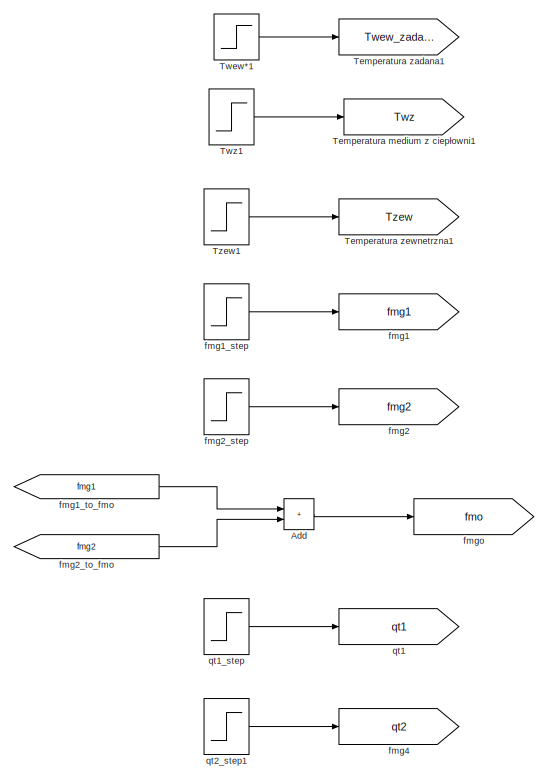
[diagram: root canvas - part 1/5, top left region]
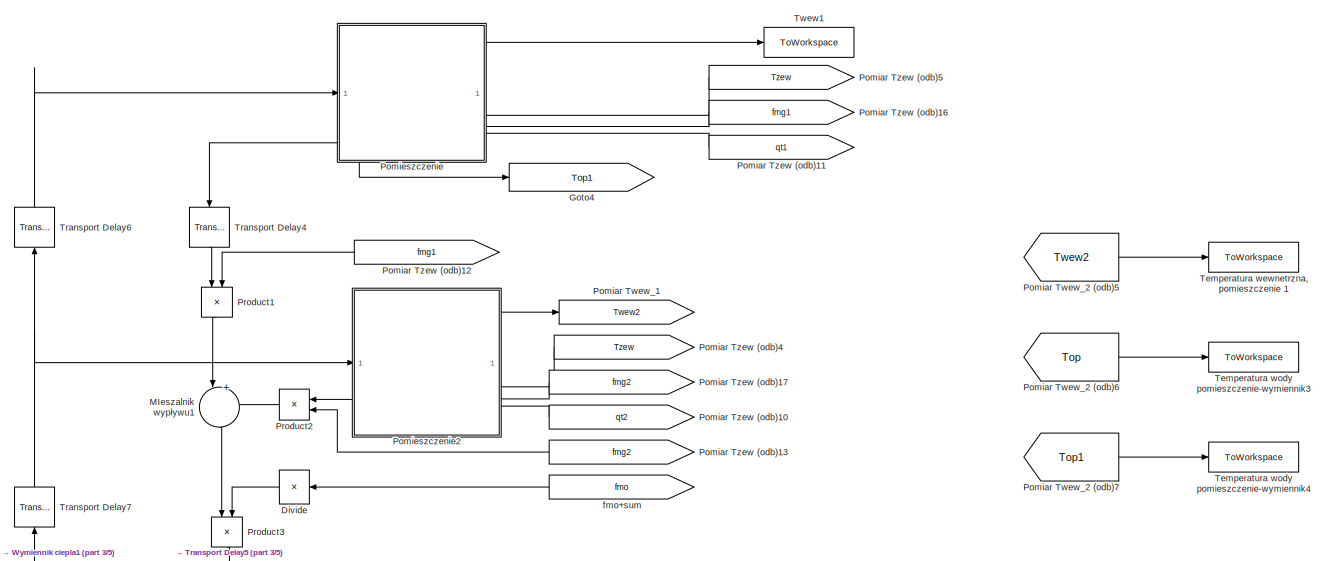
[diagram: root canvas - part 2/5, middle right region]
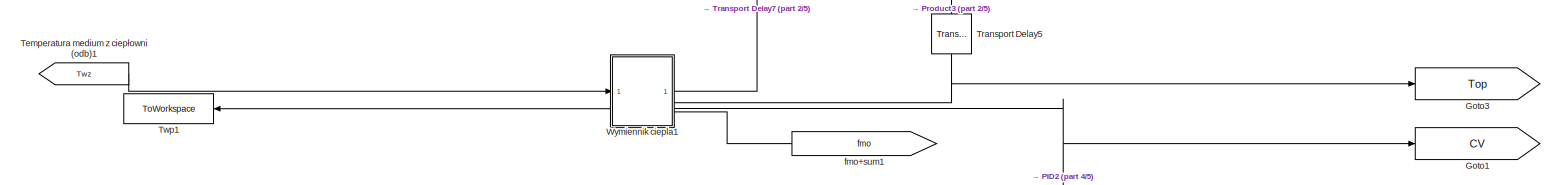
[diagram: root canvas - part 3/5, central region]
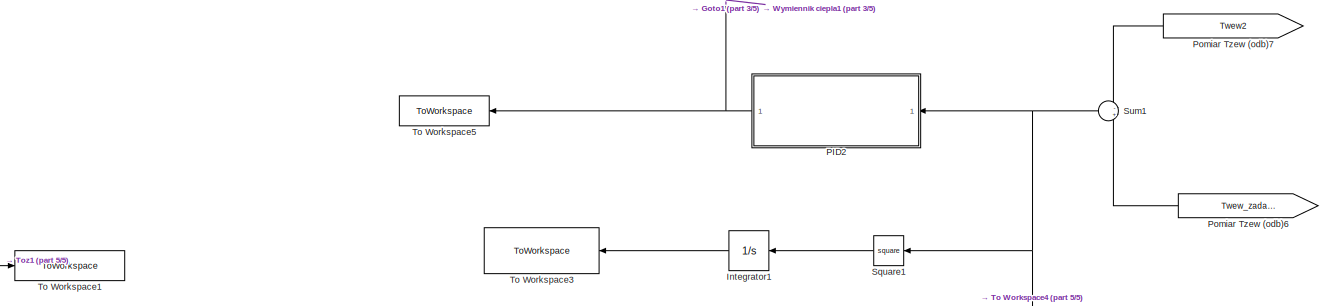
[diagram: root canvas - part 4/5, bottom center region]
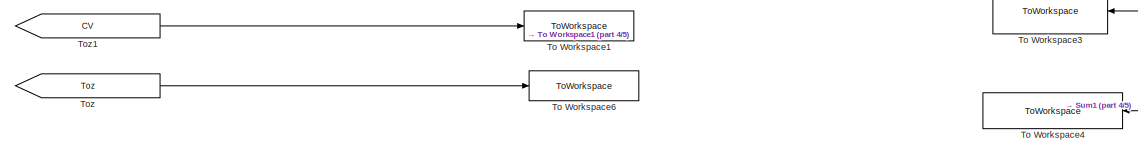
[diagram: root canvas - part 5/5, bottom left region]
MODEL slx_71a029a3e1ad
KIND model
CONFIG AbsTol = auto
CONFIG EnableMultiTasking = off
CONFIG FixedStep = 0.1
CONFIG MaxStep = 10
CONFIG MinStep = auto
CONFIG RelTol = 1e-3
CONFIG SampleTimeConstraint = Unconstrained
CONFIG SolverName = VariableStepAuto
CONFIG StartTime = 0.0
CONFIG StopTime = 10.0
WORKSPACE source: mxarray member
WORKSPACE Var = 0
BLOCK [Sum] Add
  IconShape = rectangular
BLOCK [Product] Divide
  Inputs = /
  NameLocation = top
BLOCK [Goto] Goto1
  GotoTag = CV
BLOCK [Goto] Goto3
  GotoTag = Top
BLOCK [Goto] Goto4
  GotoTag = Top1
BLOCK [Integrator] Integrator1
  NameLocation = top
BLOCK [Sum] MIeszalnik wypływu1
  Inputs = |++
  NameLocation = left
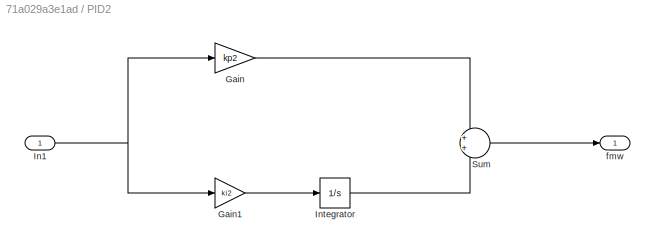
BLOCK [SubSystem] PID2
  NameLocation = top
BLOCK [Gain] PID2/Gain
  Gain = kp2
BLOCK [Gain] PID2/Gain1
  Gain = ki2
BLOCK [Inport] PID2/In1
BLOCK [Integrator] PID2/Integrator
  InitialCondition = fmw_0
BLOCK [Sum] PID2/Sum
BLOCK [Outport] PID2/fmw
BLOCK [Goto] Pomiar Twew_1
  GotoTag = Twew2
  NameLocation = right
BLOCK [From] Pomiar Twew_2 (odb)5
  GotoTag = Twew2
BLOCK [From] Pomiar Twew_2 (odb)6
  GotoTag = Top
BLOCK [From] Pomiar Twew_2 (odb)7
  GotoTag = Top1
BLOCK [From] Pomiar Tzew (odb)10
  GotoTag = qt2
  NameLocation = right
BLOCK [From] Pomiar Tzew (odb)11
  GotoTag = qt1
  NameLocation = right
BLOCK [From] Pomiar Tzew (odb)12
  GotoTag = fmg1
  NameLocation = right
BLOCK [From] Pomiar Tzew (odb)13
  GotoTag = fmg2
  NameLocation = right
BLOCK [From] Pomiar Tzew (odb)16
  GotoTag = fmg1
  NameLocation = right
BLOCK [From] Pomiar Tzew (odb)17
  GotoTag = fmg2
  NameLocation = right
BLOCK [From] Pomiar Tzew (odb)4
  GotoTag = Tzew
  NameLocation = right
BLOCK [From] Pomiar Tzew (odb)5
  GotoTag = Tzew
  NameLocation = right
BLOCK [From] Pomiar Tzew (odb)6
  GotoTag = Twew_zadana
BLOCK [From] Pomiar Tzew (odb)7
  GotoTag = Twew2
BLOCK [SubSystem] Pomieszczenie
  PortSchema = {"entries":[{"content":{"sides":[{"content":{"connectorIds":["In1","Out1"]},"type":"ConnectorPlacement.EquallySpacedRectSide","uuid":"8531bf00-72e2-4413-af12-728660d5b7ed"},{"content":{"connectorIds":["Out2","In2","In3","In4"],"side":"RIGHT"},"type":"ConnectorPlacement.EquallySpacedRectSide","uuid":"61dc3c29-eecf-49ab-a3f8-5b1de1949346"},{"content":{"side":"TOP"},"type":"ConnectorPlacement.Equally...<+247ch>
  ReferencedSubsystem = Pomieszczenie
BLOCK [SubSystem] Pomieszczenie2
  PortSchema = {"entries":[{"content":{"sides":[{"content":{"connectorIds":["In1","Out1"]},"type":"ConnectorPlacement.EquallySpacedRectSide","uuid":"8531bf00-72e2-4413-af12-728660d5b7ed"},{"content":{"connectorIds":["Out2","In2","In3","In4"],"side":"RIGHT"},"type":"ConnectorPlacement.EquallySpacedRectSide","uuid":"61dc3c29-eecf-49ab-a3f8-5b1de1949346"},{"content":{"side":"TOP"},"type":"ConnectorPlacement.Equally...<+247ch>
  ReferencedSubsystem = Pomieszczenie
BLOCK [Product] Product1
  NameLocation = left
BLOCK [Product] Product2
  NameLocation = top
BLOCK [Product] Product3
  NameLocation = left
BLOCK [Math] Square1
  NameLocation = top
  Operator = square
BLOCK [Sum] Sum1
  Inputs = -+
  NameLocation = top
BLOCK [From] Temperatura medium z ciepłowni (odb)1
  GotoTag = Twz
  NameLocation = top
BLOCK [Goto] Temperatura medium z ciepłowni1
  GotoTag = Twz
BLOCK [ToWorkspace] Temperatura wewnetrzna, pomieszczenie 1
  FixptAsFi = on
  MaxDataPoints = inf
  SampleTime = -1
  Save2DSignal = 2-D array (concatenate along first dimension)
  VariableName = Twew1
BLOCK [ToWorkspace] Temperatura wody pomieszczenie-wymiennik3
  FixptAsFi = on
  MaxDataPoints = inf
  SampleTime = -1
  Save2DSignal = 2-D array (concatenate along first dimension)
  VariableName = Top
BLOCK [ToWorkspace] Temperatura wody pomieszczenie-wymiennik4
  FixptAsFi = on
  MaxDataPoints = inf
  SampleTime = -1
  SaveFormat = Timeseries
  VariableName = Top1
BLOCK [Goto] Temperatura zadana1
  GotoTag = Twew_zadana
BLOCK [Goto] Temperatura zewnetrzna1
  GotoTag = Tzew
BLOCK [ToWorkspace] To Workspace1
  FixptAsFi = on
  MaxDataPoints = inf
  SampleTime = -1
  Save2DSignal = 2-D array (concatenate along first dimension)
  VariableName = CV
BLOCK [ToWorkspace] To Workspace3
  FixptAsFi = on
  MaxDataPoints = inf
  NameLocation = top
  SampleTime = -1
  VariableName = wsk_calkowy1
BLOCK [ToWorkspace] To Workspace4
  FixptAsFi = on
  MaxDataPoints = inf
  NameLocation = top
  SampleTime = -1
  VariableName = uchyb1
BLOCK [ToWorkspace] To Workspace5
  FixptAsFi = on
  MaxDataPoints = inf
  NameLocation = top
  SampleTime = -1
  VariableName = fmw1
BLOCK [ToWorkspace] To Workspace6
  FixptAsFi = on
  MaxDataPoints = inf
  SampleTime = -1
  VariableName = Toz
BLOCK [From] Toz
  GotoTag = Toz
  NameLocation = top
BLOCK [From] Toz1
  GotoTag = CV
  NameLocation = top
BLOCK [TransportDelay] Transport Delay4
  DelayTime = t_op_tr
  InitialOutput = T_gp0
  NameLocation = left
BLOCK [TransportDelay] Transport Delay5
  DelayTime = t_op_tr
  InitialOutput = T_gp0
  NameLocation = left
BLOCK [TransportDelay] Transport Delay6
  DelayTime = t_op_tr
  InitialOutput = T_oz0
  NameLocation = right
BLOCK [TransportDelay] Transport Delay7
  DelayTime = t_op_tr
  InitialOutput = T_oz0
  NameLocation = right
BLOCK [Step] Twew*1
  After = T_wew_SP_0 + delta_Twew_SP
  Before = T_wew_SP_0
  SampleTime = 0
  Time = t_wew_SP
BLOCK [ToWorkspace] Twew1
  FixptAsFi = on
  MaxDataPoints = inf
  NameLocation = right
  SampleTime = -1
  Save2DSignal = 2-D array (concatenate along first dimension)
  VariableName = Twew
BLOCK [ToWorkspace] Twp1
  FixptAsFi = on
  MaxDataPoints = inf
  NameLocation = top
  SampleTime = -1
  Save2DSignal = 2-D array (concatenate along first dimension)
  VariableName = Twp1
BLOCK [Step] Twz1
  After = T_wz
  Before = T_wz
  SampleTime = 0
  Time = t_Twz
BLOCK [Step] Tzew1
  After = T_zew0 + delta_Tzew
  Before = T_zew0
  SampleTime = 0
  Time = t_Tzew
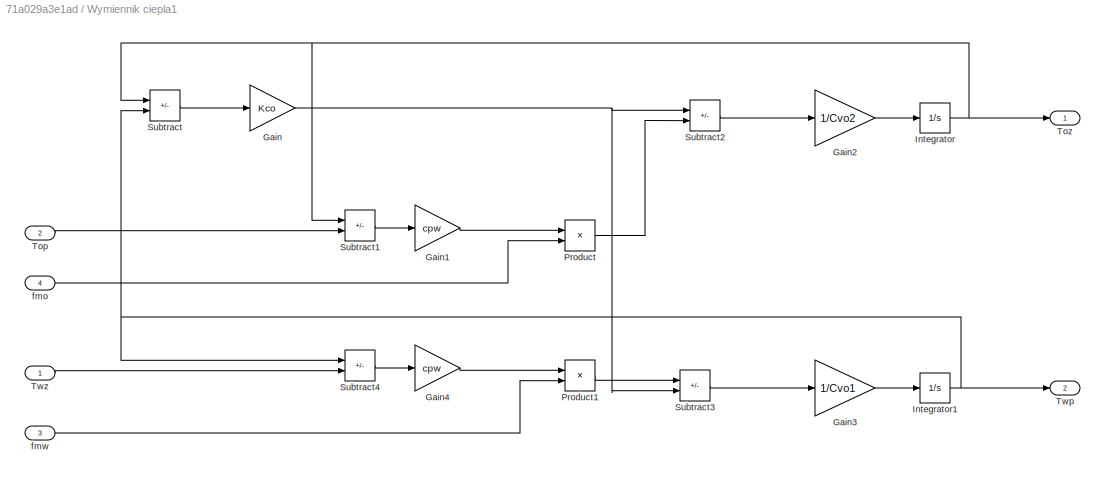
BLOCK [SubSystem] Wymiennik ciepla1
  PortSchema = {"entries":[{"content":{"sides":[{"content":{"connectorIds":["In1","Out2"]},"type":"ConnectorPlacement.EquallySpacedRectSide","uuid":"d2a1b48e-0b7a-4274-8a7b-b9fce30bfded"},{"content":{"connectorIds":["Out1","In2","In3","In4"],"side":"RIGHT"},"type":"ConnectorPlacement.EquallySpacedRectSide","uuid":"703c2424-3a4a-4f57-8096-11f8c1d27324"},{"content":{"side":"TOP"},"type":"ConnectorPlacement.Equally...<+373ch>
BLOCK [Gain] Wymiennik ciepla1/Gain
  Gain = Kco
BLOCK [Gain] Wymiennik ciepla1/Gain1
  Gain = cpw
BLOCK [Gain] Wymiennik ciepla1/Gain2
  Gain = 1/Cvo2
BLOCK [Gain] Wymiennik ciepla1/Gain3
  Gain = 1/Cvo1
BLOCK [Gain] Wymiennik ciepla1/Gain4
  Gain = cpw
BLOCK [Integrator] Wymiennik ciepla1/Integrator
  InitialCondition = T_oz0
BLOCK [Integrator] Wymiennik ciepla1/Integrator1
  InitialCondition = T_wp0
BLOCK [Product] Wymiennik ciepla1/Product
BLOCK [Product] Wymiennik ciepla1/Product1
BLOCK [Sum] Wymiennik ciepla1/Subtract
  IconShape = rectangular
  Inputs = -+
BLOCK [Sum] Wymiennik ciepla1/Subtract1
  IconShape = rectangular
  Inputs = +-
BLOCK [Sum] Wymiennik ciepla1/Subtract2
  IconShape = rectangular
  Inputs = +-
BLOCK [Sum] Wymiennik ciepla1/Subtract3
  IconShape = rectangular
  Inputs = +-
BLOCK [Sum] Wymiennik ciepla1/Subtract4
  IconShape = rectangular
  Inputs = -+
BLOCK [Inport] Wymiennik ciepla1/Top
  Port = 2
BLOCK [Outport] Wymiennik ciepla1/Toz
BLOCK [Outport] Wymiennik ciepla1/Twp
  Port = 2
BLOCK [Inport] Wymiennik ciepla1/Twz
BLOCK [Inport] Wymiennik ciepla1/fmo
  Port = 4
BLOCK [Inport] Wymiennik ciepla1/fmw
  Port = 3
BLOCK [Goto] fmg1
  GotoTag = fmg1
BLOCK [Step] fmg1_step
  After = fmg1_0 + deltafmg1
  Before = fmg1_0
  SampleTime = 0
  Time = t_fmg1
BLOCK [From] fmg1_to_fmo
  GotoTag = fmg1
  NameLocation = left
BLOCK [Goto] fmg2
  GotoTag = fmg2
BLOCK [Step] fmg2_step
  After = fmg2_0 + deltafmg2
  Before = fmg2_0
  SampleTime = 0
  Time = t_fmg2
BLOCK [From] fmg2_to_fmo
  GotoTag = fmg2
  NameLocation = left
BLOCK [Goto] fmg4
  GotoTag = qt2
BLOCK [Goto] fmgo
  GotoTag = fmo
BLOCK [From] fmo+sum
  GotoTag = fmo
  NameLocation = right
BLOCK [From] fmo+sum1
  GotoTag = fmo
  NameLocation = right
BLOCK [Goto] qt1
  GotoTag = qt1
BLOCK [Step] qt1_step
  After = qt1_0 + delta_qt1
  Before = qt1_0
  SampleTime = 0
  Time = t_qt1
BLOCK [Step] qt2_step1
  After = qt2_0 + delta_qt2
  Before = qt2_0
  SampleTime = 0
  Time = t_qt2
LINE Add:1 -> fmgo:1
LINE Divide:1 -> Product3:2
LINE Integrator1:1 -> To Workspace3:1
LINE MIeszalnik wypływu1:1 -> Product3:1
LINE PID2/Gain1:1 -> PID2/Integrator:1
LINE PID2/Gain:1 -> PID2/Sum:1
NET PID2/In1:1 -> PID2/Gain1:1, PID2/Gain:1
LINE PID2/Integrator:1 -> PID2/Sum:2
LINE PID2/Sum:1 -> PID2/fmw:1
NET PID2:1 -> Goto1:1, To Workspace5:1, Wymiennik ciepla1:3
LINE Pomiar Twew_2 (odb)5:1 -> Temperatura wewnetrzna, pomieszczenie 1:1
LINE Pomiar Twew_2 (odb)6:1 -> Temperatura wody pomieszczenie-wymiennik3:1
LINE Pomiar Twew_2 (odb)7:1 -> Temperatura wody pomieszczenie-wymiennik4:1
LINE Pomiar Tzew (odb)10:1 -> Pomieszczenie2:4
LINE Pomiar Tzew (odb)11:1 -> Pomieszczenie:4
LINE Pomiar Tzew (odb)12:1 -> Product1:2
LINE Pomiar Tzew (odb)13:1 -> Product2:2
LINE Pomiar Tzew (odb)16:1 -> Pomieszczenie:3
LINE Pomiar Tzew (odb)17:1 -> Pomieszczenie2:3
LINE Pomiar Tzew (odb)4:1 -> Pomieszczenie2:2
LINE Pomiar Tzew (odb)5:1 -> Pomieszczenie:2
LINE Pomiar Tzew (odb)6:1 -> Sum1:2
LINE Pomiar Tzew (odb)7:1 -> Sum1:1
LINE Pomieszczenie2:1 -> Product2:1
LINE Pomieszczenie2:2 -> Pomiar Twew_1:1
NET Pomieszczenie:1 -> Goto4:1, Transport Delay4:1
LINE Pomieszczenie:2 -> Twew1:1
LINE Product1:1 -> MIeszalnik wypływu1:1
LINE Product2:1 -> MIeszalnik wypływu1:2
LINE Product3:1 -> Transport Delay5:1
LINE Square1:1 -> Integrator1:1
NET Sum1:1 -> PID2:1, Square1:1, To Workspace4:1
LINE Temperatura medium z ciepłowni (odb)1:1 -> Wymiennik ciepla1:1
LINE Toz1:1 -> To Workspace1:1
LINE Toz:1 -> To Workspace6:1
LINE Transport Delay4:1 -> Product1:1
NET Transport Delay5:1 -> Goto3:1, Wymiennik ciepla1:2
LINE Transport Delay6:1 -> Pomieszczenie:1
NET Transport Delay7:1 -> Pomieszczenie2:1, Transport Delay6:1
LINE Twew*1:1 -> Temperatura zadana1:1
LINE Twz1:1 -> Temperatura medium z ciepłowni1:1
LINE Tzew1:1 -> Temperatura zewnetrzna1:1
LINE Wymiennik ciepla1/Gain1:1 -> Wymiennik ciepla1/Product:1
LINE Wymiennik ciepla1/Gain2:1 -> Wymiennik ciepla1/Integrator:1
LINE Wymiennik ciepla1/Gain3:1 -> Wymiennik ciepla1/Integrator1:1
LINE Wymiennik ciepla1/Gain4:1 -> Wymiennik ciepla1/Product1:1
NET Wymiennik ciepla1/Gain:1 -> Wymiennik ciepla1/Subtract2:1, Wymiennik ciepla1/Subtract3:2
NET Wymiennik ciepla1/Integrator1:1 -> Wymiennik ciepla1/Subtract4:1, Wymiennik ciepla1/Subtract:2, Wymiennik ciepla1/Twp:1
NET Wymiennik ciepla1/Integrator:1 -> Wymiennik ciepla1/Subtract1:1, Wymiennik ciepla1/Subtract:1, Wymiennik ciepla1/Toz:1
LINE Wymiennik ciepla1/Product1:1 -> Wymiennik ciepla1/Subtract3:1
LINE Wymiennik ciepla1/Product:1 -> Wymiennik ciepla1/Subtract2:2
LINE Wymiennik ciepla1/Subtract1:1 -> Wymiennik ciepla1/Gain1:1
LINE Wymiennik ciepla1/Subtract2:1 -> Wymiennik ciepla1/Gain2:1
LINE Wymiennik ciepla1/Subtract3:1 -> Wymiennik ciepla1/Gain3:1
LINE Wymiennik ciepla1/Subtract4:1 -> Wymiennik ciepla1/Gain4:1
LINE Wymiennik ciepla1/Subtract:1 -> Wymiennik ciepla1/Gain:1
LINE Wymiennik ciepla1/Top:1 -> Wymiennik ciepla1/Subtract1:2
LINE Wymiennik ciepla1/Twz:1 -> Wymiennik ciepla1/Subtract4:2
LINE Wymiennik ciepla1/fmo:1 -> Wymiennik ciepla1/Product:2
LINE Wymiennik ciepla1/fmw:1 -> Wymiennik ciepla1/Product1:2
LINE Wymiennik ciepla1:1 -> Transport Delay7:1
LINE Wymiennik ciepla1:2 -> Twp1:1
LINE fmg1_step:1 -> fmg1:1
LINE fmg1_to_fmo:1 -> Add:1
LINE fmg2_step:1 -> fmg2:1
LINE fmg2_to_fmo:1 -> Add:2
LINE fmo+sum1:1 -> Wymiennik ciepla1:4
LINE fmo+sum:1 -> Divide:1
LINE qt1_step:1 -> qt1:1
LINE qt2_step1:1 -> fmg4:1
note: NET lines group one-source signal fan-out (src -> all destinations, sorted); 1:1 wires keep LINE
